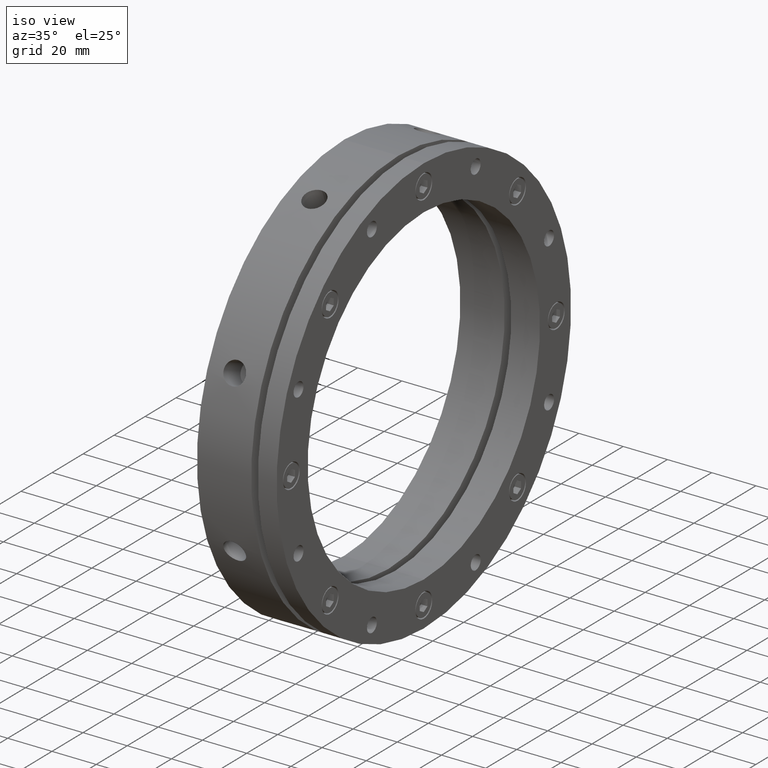
[diagram: clean part render]
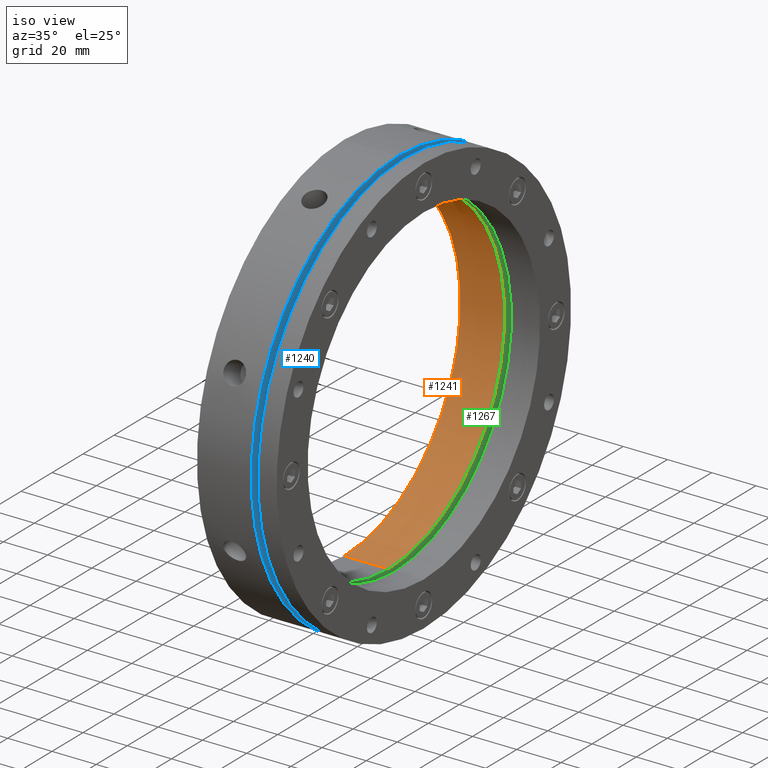
[diagram: same view with three faces highlighted in distinct colors, each labeled with its STEP entity id]
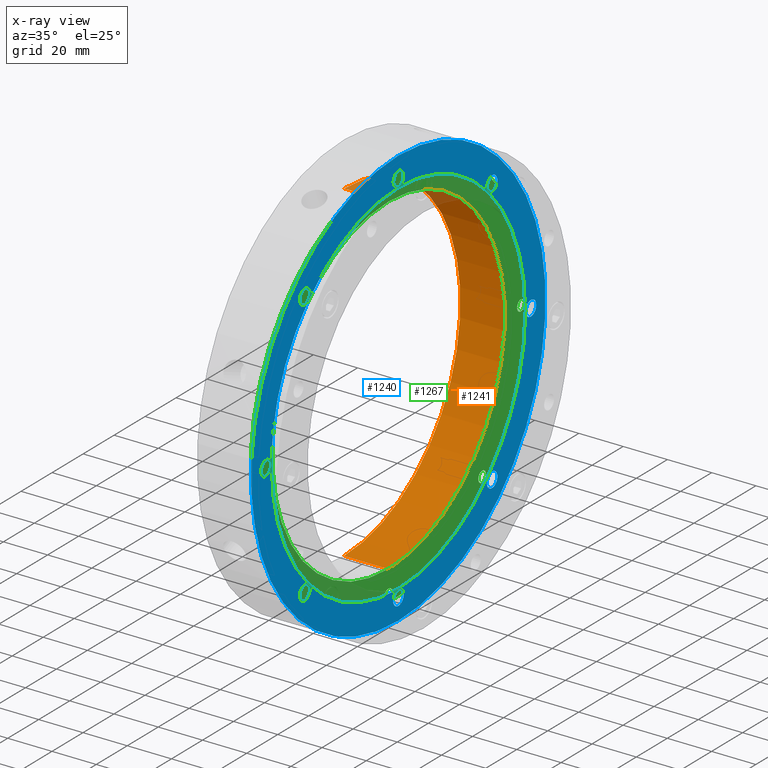
[diagram: x-ray of the same camera — body ghosted, the three highlighted faces saturated]
A machine part, iso view with three faces highlighted in distinct colors.
The next image is the same camera in x-ray (body ghosted, the three faces saturated) — at least one of them is partly hidden behind the body in this view.
Their STEP definitions:

[orange] entity #1241 — the highlighted cylindrical surface (partial cylindrical patch) has radius 75 mm, axis along (1, 0, 0).
#102 = FACE_OUTER_BOUND ( 'NONE', #1539, .T. ) ;
#108 = CYLINDRICAL_SURFACE ( 'NONE', #1805, 75.00000000000000000 ) ;
#1038 = DIRECTION ( 'NONE',  ( 1.000000000000000000, 0.0000000000000000000, 0.0000000000000000000 ) ) ;
#1039 = CARTESIAN_POINT ( 'NONE',  ( 17.99999999999997900, 0.0000000000000000000, -75.00000000000000000 ) ) ;
#1043 = DIRECTION ( 'NONE',  ( 1.000000000000000000, 0.0000000000000000000, 0.0000000000000000000 ) ) ;
#1045 = CARTESIAN_POINT ( 'NONE',  ( 17.99999999999997900, 9.184850993605148700E-015, 75.00000000000000000 ) ) ;
#1241 = ADVANCED_FACE ( 'NONE', ( #102 ), #108, .F. ) ;
#1539 = EDGE_LOOP ( 'NONE', ( #5470, #5469, #5468, #5476 ) ) ;
#1805 = AXIS2_PLACEMENT_3D ( 'NONE', #5789, #5788, #5784 ) ;
#2397 = CARTESIAN_POINT ( 'NONE',  ( 19.99999999999998200, 0.0000000000000000000, 0.0000000000000000000 ) ) ;
#2398 = DIRECTION ( 'NONE',  ( -1.000000000000000000, -0.0000000000000000000, -0.0000000000000000000 ) ) ;
#2399 = DIRECTION ( 'NONE',  ( 0.0000000000000000000, 0.0000000000000000000, -1.000000000000000000 ) ) ;
#2446 = CARTESIAN_POINT ( 'NONE',  ( -2.081668171172168500E-014, 9.184850993605148700E-015, 75.00000000000000000 ) ) ;
#2450 = CARTESIAN_POINT ( 'NONE',  ( 19.99999999999998200, 0.0000000000000000000, -75.00000000000000000 ) ) ;
#2453 = CARTESIAN_POINT ( 'NONE',  ( 19.99999999999998200, 9.184850993605148700E-015, 75.00000000000000000 ) ) ;
#2462 = CARTESIAN_POINT ( 'NONE',  ( -2.081668171172168500E-014, 0.0000000000000000000, -75.00000000000000000 ) ) ;
#2555 = CARTESIAN_POINT ( 'NONE',  ( -2.081668171172168500E-014, 0.0000000000000000000, 0.0000000000000000000 ) ) ;
#2556 = DIRECTION ( 'NONE',  ( 1.000000000000000000, 0.0000000000000000000, 0.0000000000000000000 ) ) ;
#2557 = DIRECTION ( 'NONE',  ( 0.0000000000000000000, 0.0000000000000000000, -1.000000000000000000 ) ) ;
#3841 = EDGE_CURVE ( 'NONE', #4181, #4169, #6027, .T. ) ;
#3843 = EDGE_CURVE ( 'NONE', #4165, #4172, #6024, .T. ) ;
#3963 = EDGE_CURVE ( 'NONE', #4172, #4169, #4552, .T. ) ;
#4165 = VERTEX_POINT ( 'NONE', #2446 ) ;
#4169 = VERTEX_POINT ( 'NONE', #2450 ) ;
#4172 = VERTEX_POINT ( 'NONE', #2453 ) ;
#4181 = VERTEX_POINT ( 'NONE', #2462 ) ;
#4552 = CIRCLE ( 'NONE', #5111, 75.00000000000000000 ) ;
#4586 = CIRCLE ( 'NONE', #5077, 75.00000000000000000 ) ;
#5077 = AXIS2_PLACEMENT_3D ( 'NONE', #2555, #2556, #2557 ) ;
#5111 = AXIS2_PLACEMENT_3D ( 'NONE', #2397, #2398, #2399 ) ;
#5179 = EDGE_CURVE ( 'NONE', #4181, #4165, #4586, .T. ) ;
#5468 = ORIENTED_EDGE ( 'NONE', *, *, #3841, .T. ) ;
#5469 = ORIENTED_EDGE ( 'NONE', *, *, #5179, .F. ) ;
#5470 = ORIENTED_EDGE ( 'NONE', *, *, #3843, .F. ) ;
#5476 = ORIENTED_EDGE ( 'NONE', *, *, #3963, .F. ) ;
#5784 = DIRECTION ( 'NONE',  ( 0.0000000000000000000, 0.0000000000000000000, -1.000000000000000000 ) ) ;
#5788 = DIRECTION ( 'NONE',  ( 1.000000000000000000, 0.0000000000000000000, 0.0000000000000000000 ) ) ;
#5789 = CARTESIAN_POINT ( 'NONE',  ( 17.99999999999997900, 0.0000000000000000000, 0.0000000000000000000 ) ) ;
#6020 = VECTOR ( 'NONE', #1043, 1000.000000000000000 ) ;
#6023 = VECTOR ( 'NONE', #1038, 1000.000000000000000 ) ;
#6024 = LINE ( 'NONE', #1045, #6020 ) ;
#6027 = LINE ( 'NONE', #1039, #6023 ) ;

[blue] entity #1240 — the highlighted planar face has unit normal (-1, 0, 0).
#9 = CIRCLE ( 'NONE', #5679, 82.00000000000001400 ) ;
#16 = CIRCLE ( 'NONE', #5683, 3.400000000000000400 ) ;
#28 = CIRCLE ( 'NONE', #5692, 3.400000000000000400 ) ;
#64 = FACE_BOUND ( 'NONE', #1438, .T. ) ;
#99 = FACE_BOUND ( 'NONE', #1528, .T. ) ;
#100 = FACE_BOUND ( 'NONE', #1540, .T. ) ;
#101 = FACE_BOUND ( 'NONE', #1500, .T. ) ;
#105 = FACE_OUTER_BOUND ( 'NONE', #1489, .T. ) ;
#120 = FACE_BOUND ( 'NONE', #1524, .T. ) ;
#121 = FACE_BOUND ( 'NONE', #1523, .T. ) ;
#122 = FACE_BOUND ( 'NONE', #1483, .T. ) ;
#151 = FACE_BOUND ( 'NONE', #1480, .T. ) ;
#159 = FACE_BOUND ( 'NONE', #1429, .T. ) ;
#451 = CARTESIAN_POINT ( 'NONE',  ( 24.49999999999997500, 85.50000000000000000, 3.399999999999991000 ) ) ;
#454 = CARTESIAN_POINT ( 'NONE',  ( 24.49999999999997500, 60.45762979144980400, -57.05762979144982700 ) ) ;
#455 = CARTESIAN_POINT ( 'NONE',  ( 24.49999999999997500, 60.45762979144980400, -63.85762979144982400 ) ) ;
#457 = CARTESIAN_POINT ( 'NONE',  ( 24.49999999999997500, 60.45762979144983300, 57.05762979144979100 ) ) ;
#458 = CARTESIAN_POINT ( 'NONE',  ( 24.49999999999997500, 60.45762979144983300, 63.85762979144979600 ) ) ;
#461 = CARTESIAN_POINT ( 'NONE',  ( 24.49999999999997500, -60.45762979144981100, 57.05762979144982000 ) ) ;
#466 = CARTESIAN_POINT ( 'NONE',  ( 24.49999999999997500, -60.45762979144981100, 63.85762979144982400 ) ) ;
#469 = CARTESIAN_POINT ( 'NONE',  ( 24.49999999999997500, 85.50000000000000000, -3.400000000000008300 ) ) ;
#472 = CARTESIAN_POINT ( 'NONE',  ( 24.49999999999997500, -85.50000000000000000, 3.399999999999999900 ) ) ;
#478 = CARTESIAN_POINT ( 'NONE',  ( 24.49999999999997500, -60.45762979144981800, -57.05762979144981300 ) ) ;
#481 = CARTESIAN_POINT ( 'NONE',  ( 24.49999999999997500, -85.50000000000000000, -3.399999999999999900 ) ) ;
#482 = CARTESIAN_POINT ( 'NONE',  ( 24.49999999999997500, 0.0000000000000000000, 82.10000000000000900 ) ) ;
#487 = CARTESIAN_POINT ( 'NONE',  ( 24.49999999999997500, 0.0000000000000000000, 82.00000000000001400 ) ) ;
#491 = CARTESIAN_POINT ( 'NONE',  ( 24.49999999999997500, -60.45762979144981800, -63.85762979144982400 ) ) ;
#498 = CARTESIAN_POINT ( 'NONE',  ( 24.49999999999997500, -8.465404088289900900E-015, -82.10000000000000900 ) ) ;
#499 = CARTESIAN_POINT ( 'NONE',  ( 24.49999999999997500, -8.881783999999999800E-015, -88.90000000000000600 ) ) ;
#506 = CARTESIAN_POINT ( 'NONE',  ( 24.49999999999997500, 4.163799117101000100E-016, 88.90000000000000600 ) ) ;
#514 = CARTESIAN_POINT ( 'NONE',  ( 24.49999999999997500, 1.004210375300829800E-014, -82.00000000000001400 ) ) ;
#874 = CARTESIAN_POINT ( 'NONE',  ( 24.49999999999997500, 85.50000000000000000, -8.881783999999999800E-015 ) ) ;
#875 = DIRECTION ( 'NONE',  ( 1.000000000000000000, 0.0000000000000000000, 0.0000000000000000000 ) ) ;
#876 = DIRECTION ( 'NONE',  ( 0.0000000000000000000, 0.0000000000000000000, -1.000000000000000000 ) ) ;
#884 = CARTESIAN_POINT ( 'NONE',  ( 24.49999999999997500, 60.45762979144980400, -60.45762979144982600 ) ) ;
#885 = DIRECTION ( 'NONE',  ( 1.000000000000000000, 0.0000000000000000000, 0.0000000000000000000 ) ) ;
#886 = DIRECTION ( 'NONE',  ( 0.0000000000000000000, 0.0000000000000000000, -1.000000000000000000 ) ) ;
#887 = CARTESIAN_POINT ( 'NONE',  ( 24.49999999999997500, 60.45762979144983300, 60.45762979144979000 ) ) ;
#888 = DIRECTION ( 'NONE',  ( 1.000000000000000000, 0.0000000000000000000, 0.0000000000000000000 ) ) ;
#889 = DIRECTION ( 'NONE',  ( 0.0000000000000000000, 0.0000000000000000000, -1.000000000000000000 ) ) ;
#908 = CARTESIAN_POINT ( 'NONE',  ( 24.49999999999997500, -8.881783999999999800E-015, -85.50000000000000000 ) ) ;
#909 = DIRECTION ( 'NONE',  ( 1.000000000000000000, 0.0000000000000000000, 0.0000000000000000000 ) ) ;
#910 = DIRECTION ( 'NONE',  ( 0.0000000000000000000, 0.0000000000000000000, -1.000000000000000000 ) ) ;
#1060 = CARTESIAN_POINT ( 'NONE',  ( 24.49999999999997500, -60.45762979144981800, -60.45762979144981100 ) ) ;
#1061 = DIRECTION ( 'NONE',  ( 1.000000000000000000, 0.0000000000000000000, 0.0000000000000000000 ) ) ;
#1062 = DIRECTION ( 'NONE',  ( 0.0000000000000000000, 0.0000000000000000000, -1.000000000000000000 ) ) ;
#1076 = CARTESIAN_POINT ( 'NONE',  ( 24.49999999999997500, -85.50000000000000000, 0.0000000000000000000 ) ) ;
#1077 = DIRECTION ( 'NONE',  ( 1.000000000000000000, 0.0000000000000000000, 0.0000000000000000000 ) ) ;
#1078 = DIRECTION ( 'NONE',  ( 0.0000000000000000000, 0.0000000000000000000, -1.000000000000000000 ) ) ;
#1086 = CARTESIAN_POINT ( 'NONE',  ( 24.49999999999997500, -60.45762979144981100, 60.45762979144981800 ) ) ;
#1087 = DIRECTION ( 'NONE',  ( 1.000000000000000000, 0.0000000000000000000, 0.0000000000000000000 ) ) ;
#1088 = DIRECTION ( 'NONE',  ( 0.0000000000000000000, 0.0000000000000000000, -1.000000000000000000 ) ) ;
#1101 = CARTESIAN_POINT ( 'NONE',  ( 24.49999999999997500, 0.0000000000000000000, 85.50000000000000000 ) ) ;
#1102 = DIRECTION ( 'NONE',  ( 1.000000000000000000, 0.0000000000000000000, 0.0000000000000000000 ) ) ;
#1103 = DIRECTION ( 'NONE',  ( 0.0000000000000000000, 0.0000000000000000000, -1.000000000000000000 ) ) ;
#1114 = CARTESIAN_POINT ( 'NONE',  ( 24.49999999999997500, 0.0000000000000000000, 0.0000000000000000000 ) ) ;
#1115 = DIRECTION ( 'NONE',  ( 1.000000000000000000, -0.0000000000000000000, -0.0000000000000000000 ) ) ;
#1116 = DIRECTION ( 'NONE',  ( 0.0000000000000000000, 0.0000000000000000000, 1.000000000000000000 ) ) ;
#1240 = ADVANCED_FACE ( 'NONE', ( #64, #159, #122, #151, #121, #120, #99, #100, #101, #105 ), #5783, .F. ) ;
#1384 = VERTEX_POINT ( 'NONE', #451 ) ;
#1387 = VERTEX_POINT ( 'NONE', #454 ) ;
#1388 = VERTEX_POINT ( 'NONE', #455 ) ;
#1392 = VERTEX_POINT ( 'NONE', #457 ) ;
#1394 = VERTEX_POINT ( 'NONE', #458 ) ;
#1398 = VERTEX_POINT ( 'NONE', #461 ) ;
#1405 = VERTEX_POINT ( 'NONE', #466 ) ;
#1411 = VERTEX_POINT ( 'NONE', #469 ) ;
#1416 = VERTEX_POINT ( 'NONE', #472 ) ;
#1424 = VERTEX_POINT ( 'NONE', #478 ) ;
#1427 = VERTEX_POINT ( 'NONE', #481 ) ;
#1428 = VERTEX_POINT ( 'NONE', #482 ) ;
#1429 = EDGE_LOOP ( 'NONE', ( #5462, #5461 ) ) ;
#1437 = VERTEX_POINT ( 'NONE', #487 ) ;
#1438 = EDGE_LOOP ( 'NONE', ( #5464, #5463 ) ) ;
#1443 = VERTEX_POINT ( 'NONE', #491 ) ;
#1452 = VERTEX_POINT ( 'NONE', #498 ) ;
#1453 = VERTEX_POINT ( 'NONE', #499 ) ;
#1468 = VERTEX_POINT ( 'NONE', #506 ) ;
#1480 = EDGE_LOOP ( 'NONE', ( #5458, #5455 ) ) ;
#1481 = VERTEX_POINT ( 'NONE', #514 ) ;
#1483 = EDGE_LOOP ( 'NONE', ( #5460, #5459 ) ) ;
#1489 = EDGE_LOOP ( 'NONE', ( #5452, #5451 ) ) ;
#1500 = EDGE_LOOP ( 'NONE', ( #5454, #5453 ) ) ;
#1523 = EDGE_LOOP ( 'NONE', ( #5456, #5505 ) ) ;
#1524 = EDGE_LOOP ( 'NONE', ( #5504, #5507 ) ) ;
#1528 = EDGE_LOOP ( 'NONE', ( #5503, #5506 ) ) ;
#1540 = EDGE_LOOP ( 'NONE', ( #5500, #5457 ) ) ;
#1734 = AXIS2_PLACEMENT_3D ( 'NONE', #874, #875, #876 ) ;
#1736 = AXIS2_PLACEMENT_3D ( 'NONE', #884, #885, #886 ) ;
#1740 = AXIS2_PLACEMENT_3D ( 'NONE', #887, #888, #889 ) ;
#1744 = AXIS2_PLACEMENT_3D ( 'NONE', #908, #909, #910 ) ;
#1807 = AXIS2_PLACEMENT_3D ( 'NONE', #5785, #5781, #5787 ) ;
#2424 = CARTESIAN_POINT ( 'NONE',  ( 24.49999999999997500, 60.45762979144983300, 60.45762979144979000 ) ) ;
#2425 = DIRECTION ( 'NONE',  ( 1.000000000000000000, 0.0000000000000000000, 0.0000000000000000000 ) ) ;
#2426 = DIRECTION ( 'NONE',  ( 0.0000000000000000000, 0.0000000000000000000, -1.000000000000000000 ) ) ;
#2428 = CARTESIAN_POINT ( 'NONE',  ( 24.49999999999997500, 85.50000000000000000, -8.881783999999999800E-015 ) ) ;
#2429 = DIRECTION ( 'NONE',  ( 1.000000000000000000, 0.0000000000000000000, 0.0000000000000000000 ) ) ;
#2430 = DIRECTION ( 'NONE',  ( 0.0000000000000000000, 0.0000000000000000000, -1.000000000000000000 ) ) ;
#2433 = CARTESIAN_POINT ( 'NONE',  ( 24.49999999999997500, 60.45762979144980400, -60.45762979144982600 ) ) ;
#2434 = DIRECTION ( 'NONE',  ( 1.000000000000000000, 0.0000000000000000000, 0.0000000000000000000 ) ) ;
#2435 = DIRECTION ( 'NONE',  ( 0.0000000000000000000, 0.0000000000000000000, -1.000000000000000000 ) ) ;
#2438 = CARTESIAN_POINT ( 'NONE',  ( 24.49999999999997500, -8.881783999999999800E-015, -85.50000000000000000 ) ) ;
#2439 = DIRECTION ( 'NONE',  ( 1.000000000000000000, 0.0000000000000000000, 0.0000000000000000000 ) ) ;
#2440 = DIRECTION ( 'NONE',  ( 0.0000000000000000000, 0.0000000000000000000, -1.000000000000000000 ) ) ;
#2472 = CARTESIAN_POINT ( 'NONE',  ( 24.49999999999997500, 1.163414459189985600E-014, 95.00000000000000000 ) ) ;
#2486 = CARTESIAN_POINT ( 'NONE',  ( 24.49999999999997500, 0.0000000000000000000, -95.00000000000000000 ) ) ;
#2490 = CARTESIAN_POINT ( 'NONE',  ( 24.49999999999997500, -60.45762979144981800, -60.45762979144981100 ) ) ;
#2491 = DIRECTION ( 'NONE',  ( 1.000000000000000000, 0.0000000000000000000, 0.0000000000000000000 ) ) ;
#2492 = DIRECTION ( 'NONE',  ( 0.0000000000000000000, 0.0000000000000000000, -1.000000000000000000 ) ) ;
#2493 = CARTESIAN_POINT ( 'NONE',  ( 24.49999999999997500, -85.50000000000000000, 0.0000000000000000000 ) ) ;
#2494 = DIRECTION ( 'NONE',  ( 1.000000000000000000, 0.0000000000000000000, 0.0000000000000000000 ) ) ;
#2495 = DIRECTION ( 'NONE',  ( 0.0000000000000000000, 0.0000000000000000000, -1.000000000000000000 ) ) ;
#2496 = CARTESIAN_POINT ( 'NONE',  ( 24.49999999999997500, -60.45762979144981100, 60.45762979144981800 ) ) ;
#2497 = DIRECTION ( 'NONE',  ( 1.000000000000000000, 0.0000000000000000000, 0.0000000000000000000 ) ) ;
#2498 = DIRECTION ( 'NONE',  ( 0.0000000000000000000, 0.0000000000000000000, -1.000000000000000000 ) ) ;
#2499 = CARTESIAN_POINT ( 'NONE',  ( 24.49999999999997500, 0.0000000000000000000, 85.50000000000000000 ) ) ;
#2500 = DIRECTION ( 'NONE',  ( 1.000000000000000000, 0.0000000000000000000, 0.0000000000000000000 ) ) ;
#2501 = DIRECTION ( 'NONE',  ( 0.0000000000000000000, 0.0000000000000000000, -1.000000000000000000 ) ) ;
#2502 = CARTESIAN_POINT ( 'NONE',  ( 24.49999999999997500, 0.0000000000000000000, 0.0000000000000000000 ) ) ;
#2503 = DIRECTION ( 'NONE',  ( 1.000000000000000000, -0.0000000000000000000, -0.0000000000000000000 ) ) ;
#2504 = DIRECTION ( 'NONE',  ( 0.0000000000000000000, 0.0000000000000000000, 1.000000000000000000 ) ) ;
#2560 = CARTESIAN_POINT ( 'NONE',  ( 24.49999999999997500, 0.0000000000000000000, 0.0000000000000000000 ) ) ;
#2561 = DIRECTION ( 'NONE',  ( -1.000000000000000000, -0.0000000000000000000, -0.0000000000000000000 ) ) ;
#2562 = DIRECTION ( 'NONE',  ( 0.0000000000000000000, 0.0000000000000000000, -1.000000000000000000 ) ) ;
#2876 = CARTESIAN_POINT ( 'NONE',  ( 24.49999999999997500, 0.0000000000000000000, 0.0000000000000000000 ) ) ;
#2877 = DIRECTION ( 'NONE',  ( -1.000000000000000000, -0.0000000000000000000, -0.0000000000000000000 ) ) ;
#2878 = DIRECTION ( 'NONE',  ( 0.0000000000000000000, 0.0000000000000000000, -1.000000000000000000 ) ) ;
#3502 = EDGE_CURVE ( 'NONE', #1384, #1411, #4125, .T. ) ;
#3506 = EDGE_CURVE ( 'NONE', #1387, #1388, #4119, .T. ) ;
#3507 = EDGE_CURVE ( 'NONE', #1394, #1392, #4118, .T. ) ;
#3517 = EDGE_CURVE ( 'NONE', #1452, #1453, #4102, .T. ) ;
#3848 = EDGE_CURVE ( 'NONE', #1424, #1443, #6016, .T. ) ;
#3854 = EDGE_CURVE ( 'NONE', #1416, #1427, #6008, .T. ) ;
#3858 = EDGE_CURVE ( 'NONE', #1405, #1398, #28, .T. ) ;
#3864 = EDGE_CURVE ( 'NONE', #1468, #1428, #16, .T. ) ;
#3870 = EDGE_CURVE ( 'NONE', #1481, #1437, #9, .T. ) ;
#3972 = EDGE_CURVE ( 'NONE', #1392, #1394, #4561, .T. ) ;
#3973 = EDGE_CURVE ( 'NONE', #1411, #1384, #4562, .T. ) ;
#3974 = EDGE_CURVE ( 'NONE', #1388, #1387, #4563, .T. ) ;
#3975 = EDGE_CURVE ( 'NONE', #1453, #1452, #4564, .T. ) ;
#4102 = CIRCLE ( 'NONE', #1744, 3.400000000000000400 ) ;
#4118 = CIRCLE ( 'NONE', #1740, 3.400000000000000400 ) ;
#4119 = CIRCLE ( 'NONE', #1736, 3.399999999999993200 ) ;
#4125 = CIRCLE ( 'NONE', #1734, 3.399999999999999900 ) ;
#4191 = VERTEX_POINT ( 'NONE', #2472 ) ;
#4205 = VERTEX_POINT ( 'NONE', #2486 ) ;
#4486 = CIRCLE ( 'NONE', #5096, 3.400000000000000400 ) ;
#4561 = CIRCLE ( 'NONE', #5102, 3.400000000000000400 ) ;
#4562 = CIRCLE ( 'NONE', #5101, 3.399999999999999900 ) ;
#4563 = CIRCLE ( 'NONE', #5100, 3.399999999999993200 ) ;
#4564 = CIRCLE ( 'NONE', #5099, 3.400000000000000400 ) ;
#4567 = CIRCLE ( 'NONE', #5098, 3.400000000000007000 ) ;
#4568 = CIRCLE ( 'NONE', #5097, 3.399999999999999900 ) ;
#4572 = CIRCLE ( 'NONE', #5094, 82.00000000000001400 ) ;
#4573 = CIRCLE ( 'NONE', #5095, 3.400000000000000400 ) ;
#4587 = CIRCLE ( 'NONE', #5076, 95.00000000000000000 ) ;
#4649 = CIRCLE ( 'NONE', #5064, 95.00000000000000000 ) ;
#5064 = AXIS2_PLACEMENT_3D ( 'NONE', #2876, #2877, #2878 ) ;
#5076 = AXIS2_PLACEMENT_3D ( 'NONE', #2560, #2561, #2562 ) ;
#5094 = AXIS2_PLACEMENT_3D ( 'NONE', #2502, #2503, #2504 ) ;
#5095 = AXIS2_PLACEMENT_3D ( 'NONE', #2499, #2500, #2501 ) ;
#5096 = AXIS2_PLACEMENT_3D ( 'NONE', #2496, #2497, #2498 ) ;
#5097 = AXIS2_PLACEMENT_3D ( 'NONE', #2493, #2494, #2495 ) ;
#5098 = AXIS2_PLACEMENT_3D ( 'NONE', #2490, #2491, #2492 ) ;
#5099 = AXIS2_PLACEMENT_3D ( 'NONE', #2438, #2439, #2440 ) ;
#5100 = AXIS2_PLACEMENT_3D ( 'NONE', #2433, #2434, #2435 ) ;
#5101 = AXIS2_PLACEMENT_3D ( 'NONE', #2428, #2429, #2430 ) ;
#5102 = AXIS2_PLACEMENT_3D ( 'NONE', #2424, #2425, #2426 ) ;
#5158 = EDGE_CURVE ( 'NONE', #1443, #1424, #4567, .T. ) ;
#5159 = EDGE_CURVE ( 'NONE', #1427, #1416, #4568, .T. ) ;
#5160 = EDGE_CURVE ( 'NONE', #1398, #1405, #4486, .T. ) ;
#5161 = EDGE_CURVE ( 'NONE', #1428, #1468, #4573, .T. ) ;
#5162 = EDGE_CURVE ( 'NONE', #1437, #1481, #4572, .T. ) ;
#5180 = EDGE_CURVE ( 'NONE', #4205, #4191, #4587, .T. ) ;
#5224 = EDGE_CURVE ( 'NONE', #4191, #4205, #4649, .T. ) ;
#5451 = ORIENTED_EDGE ( 'NONE', *, *, #5224, .F. ) ;
#5452 = ORIENTED_EDGE ( 'NONE', *, *, #5180, .F. ) ;
#5453 = ORIENTED_EDGE ( 'NONE', *, *, #3507, .F. ) ;
#5454 = ORIENTED_EDGE ( 'NONE', *, *, #3972, .F. ) ;
#5455 = ORIENTED_EDGE ( 'NONE', *, *, #3854, .F. ) ;
#5456 = ORIENTED_EDGE ( 'NONE', *, *, #5158, .F. ) ;
#5457 = ORIENTED_EDGE ( 'NONE', *, *, #3502, .F. ) ;
#5458 = ORIENTED_EDGE ( 'NONE', *, *, #5159, .F. ) ;
#5459 = ORIENTED_EDGE ( 'NONE', *, *, #3858, .F. ) ;
#5460 = ORIENTED_EDGE ( 'NONE', *, *, #5160, .F. ) ;
#5461 = ORIENTED_EDGE ( 'NONE', *, *, #3864, .F. ) ;
#5462 = ORIENTED_EDGE ( 'NONE', *, *, #5161, .F. ) ;
#5463 = ORIENTED_EDGE ( 'NONE', *, *, #3870, .F. ) ;
#5464 = ORIENTED_EDGE ( 'NONE', *, *, #5162, .F. ) ;
#5500 = ORIENTED_EDGE ( 'NONE', *, *, #3973, .F. ) ;
#5503 = ORIENTED_EDGE ( 'NONE', *, *, #3974, .F. ) ;
#5504 = ORIENTED_EDGE ( 'NONE', *, *, #3975, .F. ) ;
#5505 = ORIENTED_EDGE ( 'NONE', *, *, #3848, .F. ) ;
#5506 = ORIENTED_EDGE ( 'NONE', *, *, #3506, .F. ) ;
#5507 = ORIENTED_EDGE ( 'NONE', *, *, #3517, .F. ) ;
#5679 = AXIS2_PLACEMENT_3D ( 'NONE', #1114, #1115, #1116 ) ;
#5683 = AXIS2_PLACEMENT_3D ( 'NONE', #1101, #1102, #1103 ) ;
#5688 = AXIS2_PLACEMENT_3D ( 'NONE', #1076, #1077, #1078 ) ;
#5691 = AXIS2_PLACEMENT_3D ( 'NONE', #1060, #1061, #1062 ) ;
#5692 = AXIS2_PLACEMENT_3D ( 'NONE', #1086, #1087, #1088 ) ;
#5781 = DIRECTION ( 'NONE',  ( -1.000000000000000000, 0.0000000000000000000, 0.0000000000000000000 ) ) ;
#5783 = PLANE ( 'NONE',  #1807 ) ;
#5785 = CARTESIAN_POINT ( 'NONE',  ( 24.49999999999997500, 88.50000000000001400, 0.0000000000000000000 ) ) ;
#5787 = DIRECTION ( 'NONE',  ( 0.0000000000000000000, 0.0000000000000000000, 1.000000000000000000 ) ) ;
#6008 = CIRCLE ( 'NONE', #5688, 3.399999999999999900 ) ;
#6016 = CIRCLE ( 'NONE', #5691, 3.400000000000007000 ) ;

[green] entity #1267 — the highlighted planar face has unit normal (-1, 0, 0).
#44 = FACE_OUTER_BOUND ( 'NONE', #1420, .T. ) ;
#45 = FACE_BOUND ( 'NONE', #1415, .T. ) ;
#46 = FACE_BOUND ( 'NONE', #1414, .T. ) ;
#47 = FACE_BOUND ( 'NONE', #1409, .T. ) ;
#48 = FACE_BOUND ( 'NONE', #1396, .T. ) ;
#49 = FACE_BOUND ( 'NONE', #1402, .T. ) ;
#52 = FACE_BOUND ( 'NONE', #1410, .T. ) ;
#60 = FACE_BOUND ( 'NONE', #3770, .T. ) ;
#61 = FACE_BOUND ( 'NONE', #1407, .T. ) ;
#69 = FACE_BOUND ( 'NONE', #1403, .T. ) ;
#445 = CARTESIAN_POINT ( 'NONE',  ( 19.99999999999998200, 60.45762979144983300, 62.91612979144979800 ) ) ;
#452 = CARTESIAN_POINT ( 'NONE',  ( 19.99999999999996400, 0.0000000000000000000, 89.00000000000000000 ) ) ;
#501 = CARTESIAN_POINT ( 'NONE',  ( 19.99999999999996400, 1.089935651241144200E-014, -89.00000000000000000 ) ) ;
#502 = CARTESIAN_POINT ( 'NONE',  ( 19.99999999999998200, -60.45762979144981800, -57.99912979144981100 ) ) ;
#508 = CARTESIAN_POINT ( 'NONE',  ( 19.99999999999998200, -8.580704584429623500E-015, -87.95850000000001500 ) ) ;
#510 = CARTESIAN_POINT ( 'NONE',  ( 19.99999999999998200, -8.881783999999999800E-015, -83.04149999999999900 ) ) ;
#521 = CARTESIAN_POINT ( 'NONE',  ( 19.99999999999998200, 60.45762979144980400, -62.91612979144982600 ) ) ;
#525 = CARTESIAN_POINT ( 'NONE',  ( 19.99999999999998200, 60.45762979144983300, 57.99912979144978900 ) ) ;
#526 = CARTESIAN_POINT ( 'NONE',  ( 19.99999999999998200, 85.50000000000000000, 2.458499999999991000 ) ) ;
#531 = CARTESIAN_POINT ( 'NONE',  ( 19.99999999999998200, 60.45762979144980400, -57.99912979144982500 ) ) ;
#606 = CARTESIAN_POINT ( 'NONE',  ( 19.99999999999998200, 85.50000000000000000, -2.458500000000008300 ) ) ;
#663 = CARTESIAN_POINT ( 'NONE',  ( 19.99999999999998200, -60.45762979144981800, -60.45762979144981100 ) ) ;
#664 = DIRECTION ( 'NONE',  ( -1.000000000000000000, 0.0000000000000000000, 0.0000000000000000000 ) ) ;
#665 = DIRECTION ( 'NONE',  ( 0.0000000000000000000, 0.0000000000000000000, 1.000000000000000000 ) ) ;
#687 = CARTESIAN_POINT ( 'NONE',  ( 19.99999999999998200, -8.881783999999999800E-015, -85.50000000000000000 ) ) ;
#688 = DIRECTION ( 'NONE',  ( -1.000000000000000000, 0.0000000000000000000, 0.0000000000000000000 ) ) ;
#689 = DIRECTION ( 'NONE',  ( 0.0000000000000000000, 0.0000000000000000000, 1.000000000000000000 ) ) ;
#785 = CARTESIAN_POINT ( 'NONE',  ( 19.99999999999998200, 60.45762979144983300, 60.45762979144979000 ) ) ;
#786 = DIRECTION ( 'NONE',  ( -1.000000000000000000, 0.0000000000000000000, 0.0000000000000000000 ) ) ;
#787 = DIRECTION ( 'NONE',  ( 0.0000000000000000000, 0.0000000000000000000, 1.000000000000000000 ) ) ;
#835 = CARTESIAN_POINT ( 'NONE',  ( 19.99999999999998200, -60.45762979144981100, 60.45762979144981800 ) ) ;
#836 = DIRECTION ( 'NONE',  ( -1.000000000000000000, 0.0000000000000000000, 0.0000000000000000000 ) ) ;
#837 = DIRECTION ( 'NONE',  ( 0.0000000000000000000, 0.0000000000000000000, 1.000000000000000000 ) ) ;
#854 = CARTESIAN_POINT ( 'NONE',  ( 19.99999999999996400, 0.0000000000000000000, 0.0000000000000000000 ) ) ;
#855 = DIRECTION ( 'NONE',  ( -1.000000000000000000, 0.0000000000000000000, 0.0000000000000000000 ) ) ;
#856 = DIRECTION ( 'NONE',  ( 0.0000000000000000000, 0.0000000000000000000, 1.000000000000000000 ) ) ;
#858 = CARTESIAN_POINT ( 'NONE',  ( 19.99999999999998200, 60.45762979144980400, -60.45762979144982600 ) ) ;
#859 = DIRECTION ( 'NONE',  ( -1.000000000000000000, 0.0000000000000000000, 0.0000000000000000000 ) ) ;
#860 = DIRECTION ( 'NONE',  ( 0.0000000000000000000, 0.0000000000000000000, 1.000000000000000000 ) ) ;
#903 = CARTESIAN_POINT ( 'NONE',  ( 19.99999999999998200, 85.50000000000000000, -8.881783999999999800E-015 ) ) ;
#904 = DIRECTION ( 'NONE',  ( -1.000000000000000000, 0.0000000000000000000, 0.0000000000000000000 ) ) ;
#905 = DIRECTION ( 'NONE',  ( 0.0000000000000000000, 0.0000000000000000000, 1.000000000000000000 ) ) ;
#1040 = CARTESIAN_POINT ( 'NONE',  ( 19.99999999999998200, 0.0000000000000000000, 85.50000000000000000 ) ) ;
#1041 = DIRECTION ( 'NONE',  ( -1.000000000000000000, 0.0000000000000000000, 0.0000000000000000000 ) ) ;
#1042 = DIRECTION ( 'NONE',  ( 0.0000000000000000000, 0.0000000000000000000, 1.000000000000000000 ) ) ;
#1046 = CARTESIAN_POINT ( 'NONE',  ( 19.99999999999998200, 0.0000000000000000000, 0.0000000000000000000 ) ) ;
#1047 = DIRECTION ( 'NONE',  ( -1.000000000000000000, -0.0000000000000000000, -0.0000000000000000000 ) ) ;
#1048 = DIRECTION ( 'NONE',  ( 0.0000000000000000000, 0.0000000000000000000, -1.000000000000000000 ) ) ;
#1056 = CARTESIAN_POINT ( 'NONE',  ( 19.99999999999998200, -85.50000000000000000, 0.0000000000000000000 ) ) ;
#1057 = DIRECTION ( 'NONE',  ( -1.000000000000000000, 0.0000000000000000000, 0.0000000000000000000 ) ) ;
#1058 = DIRECTION ( 'NONE',  ( 0.0000000000000000000, 0.0000000000000000000, 1.000000000000000000 ) ) ;
#1267 = ADVANCED_FACE ( 'NONE', ( #61, #49, #60, #69, #52, #48, #47, #46, #45, #44 ), #5865, .F. ) ;
#1385 = VERTEX_POINT ( 'NONE', #452 ) ;
#1391 = VERTEX_POINT ( 'NONE', #445 ) ;
#1396 = EDGE_LOOP ( 'NONE', ( #4256, #4255 ) ) ;
#1402 = EDGE_LOOP ( 'NONE', ( #4264, #4263 ) ) ;
#1403 = EDGE_LOOP ( 'NONE', ( #4260, #4259 ) ) ;
#1407 = EDGE_LOOP ( 'NONE', ( #4266, #4265 ) ) ;
#1409 = EDGE_LOOP ( 'NONE', ( #4254, #4253 ) ) ;
#1410 = EDGE_LOOP ( 'NONE', ( #4258, #4257 ) ) ;
#1414 = EDGE_LOOP ( 'NONE', ( #4252, #4251 ) ) ;
#1415 = EDGE_LOOP ( 'NONE', ( #4250, #4249 ) ) ;
#1420 = EDGE_LOOP ( 'NONE', ( #4248, #4247 ) ) ;
#1461 = VERTEX_POINT ( 'NONE', #501 ) ;
#1463 = VERTEX_POINT ( 'NONE', #502 ) ;
#1470 = VERTEX_POINT ( 'NONE', #508 ) ;
#1472 = VERTEX_POINT ( 'NONE', #510 ) ;
#1505 = VERTEX_POINT ( 'NONE', #521 ) ;
#1514 = VERTEX_POINT ( 'NONE', #525 ) ;
#1515 = VERTEX_POINT ( 'NONE', #526 ) ;
#1535 = VERTEX_POINT ( 'NONE', #531 ) ;
#1615 = VERTEX_POINT ( 'NONE', #606 ) ;
#1678 = CIRCLE ( 'NONE', #1768, 2.458500000000002600 ) ;
#1689 = CIRCLE ( 'NONE', #1779, 2.458500000000002600 ) ;
#1728 = AXIS2_PLACEMENT_3D ( 'NONE', #854, #855, #856 ) ;
#1730 = AXIS2_PLACEMENT_3D ( 'NONE', #785, #786, #787 ) ;
#1733 = AXIS2_PLACEMENT_3D ( 'NONE', #858, #859, #860 ) ;
#1739 = AXIS2_PLACEMENT_3D ( 'NONE', #903, #904, #905 ) ;
#1767 = AXIS2_PLACEMENT_3D ( 'NONE', #835, #836, #837 ) ;
#1768 = AXIS2_PLACEMENT_3D ( 'NONE', #687, #688, #689 ) ;
#1779 = AXIS2_PLACEMENT_3D ( 'NONE', #663, #664, #665 ) ;
#1839 = EDGE_CURVE ( 'NONE', #4156, #1463, #1689, .T. ) ;
#1848 = EDGE_CURVE ( 'NONE', #1470, #1472, #1678, .T. ) ;
#2367 = CARTESIAN_POINT ( 'NONE',  ( 19.99999999999996400, 0.0000000000000000000, 0.0000000000000000000 ) ) ;
#2368 = DIRECTION ( 'NONE',  ( -1.000000000000000000, 0.0000000000000000000, 0.0000000000000000000 ) ) ;
#2369 = DIRECTION ( 'NONE',  ( 0.0000000000000000000, 0.0000000000000000000, 1.000000000000000000 ) ) ;
#2397 = CARTESIAN_POINT ( 'NONE',  ( 19.99999999999998200, 0.0000000000000000000, 0.0000000000000000000 ) ) ;
#2398 = DIRECTION ( 'NONE',  ( -1.000000000000000000, -0.0000000000000000000, -0.0000000000000000000 ) ) ;
#2399 = DIRECTION ( 'NONE',  ( 0.0000000000000000000, 0.0000000000000000000, -1.000000000000000000 ) ) ;
#2400 = CARTESIAN_POINT ( 'NONE',  ( 19.99999999999998200, 0.0000000000000000000, 85.50000000000000000 ) ) ;
#2401 = DIRECTION ( 'NONE',  ( -1.000000000000000000, 0.0000000000000000000, 0.0000000000000000000 ) ) ;
#2402 = DIRECTION ( 'NONE',  ( 0.0000000000000000000, 0.0000000000000000000, 1.000000000000000000 ) ) ;
#2403 = CARTESIAN_POINT ( 'NONE',  ( 19.99999999999998200, -60.45762979144981100, 60.45762979144981800 ) ) ;
#2404 = DIRECTION ( 'NONE',  ( -1.000000000000000000, 0.0000000000000000000, 0.0000000000000000000 ) ) ;
#2405 = DIRECTION ( 'NONE',  ( 0.0000000000000000000, 0.0000000000000000000, 1.000000000000000000 ) ) ;
#2406 = CARTESIAN_POINT ( 'NONE',  ( 19.99999999999998200, -85.50000000000000000, 0.0000000000000000000 ) ) ;
#2407 = DIRECTION ( 'NONE',  ( -1.000000000000000000, 0.0000000000000000000, 0.0000000000000000000 ) ) ;
#2408 = DIRECTION ( 'NONE',  ( 0.0000000000000000000, 0.0000000000000000000, 1.000000000000000000 ) ) ;
#2409 = CARTESIAN_POINT ( 'NONE',  ( 19.99999999999998200, -60.45762979144981800, -60.45762979144981100 ) ) ;
#2410 = DIRECTION ( 'NONE',  ( -1.000000000000000000, 0.0000000000000000000, 0.0000000000000000000 ) ) ;
#2411 = DIRECTION ( 'NONE',  ( 0.0000000000000000000, 0.0000000000000000000, 1.000000000000000000 ) ) ;
#2412 = CARTESIAN_POINT ( 'NONE',  ( 19.99999999999998200, -8.881783999999999800E-015, -85.50000000000000000 ) ) ;
#2413 = DIRECTION ( 'NONE',  ( -1.000000000000000000, 0.0000000000000000000, 0.0000000000000000000 ) ) ;
#2414 = DIRECTION ( 'NONE',  ( 0.0000000000000000000, 0.0000000000000000000, 1.000000000000000000 ) ) ;
#2415 = CARTESIAN_POINT ( 'NONE',  ( 19.99999999999998200, 60.45762979144980400, -60.45762979144982600 ) ) ;
#2416 = DIRECTION ( 'NONE',  ( -1.000000000000000000, 0.0000000000000000000, 0.0000000000000000000 ) ) ;
#2417 = DIRECTION ( 'NONE',  ( 0.0000000000000000000, 0.0000000000000000000, 1.000000000000000000 ) ) ;
#2418 = CARTESIAN_POINT ( 'NONE',  ( 19.99999999999998200, 85.50000000000000000, -8.881783999999999800E-015 ) ) ;
#2419 = DIRECTION ( 'NONE',  ( -1.000000000000000000, 0.0000000000000000000, 0.0000000000000000000 ) ) ;
#2420 = DIRECTION ( 'NONE',  ( 0.0000000000000000000, 0.0000000000000000000, 1.000000000000000000 ) ) ;
#2421 = CARTESIAN_POINT ( 'NONE',  ( 19.99999999999998200, 60.45762979144983300, 60.45762979144979000 ) ) ;
#2422 = DIRECTION ( 'NONE',  ( -1.000000000000000000, 0.0000000000000000000, 0.0000000000000000000 ) ) ;
#2423 = DIRECTION ( 'NONE',  ( 0.0000000000000000000, 0.0000000000000000000, 1.000000000000000000 ) ) ;
#2431 = CARTESIAN_POINT ( 'NONE',  ( 19.99999999999998200, -85.50000000000000000, -2.458499999999999900 ) ) ;
#2436 = CARTESIAN_POINT ( 'NONE',  ( 19.99999999999998200, -60.45762979144981800, -62.91612979144981200 ) ) ;
#2441 = CARTESIAN_POINT ( 'NONE',  ( 19.99999999999998200, -85.50000000000000000, 2.458499999999999900 ) ) ;
#2443 = CARTESIAN_POINT ( 'NONE',  ( 19.99999999999998200, -60.45762979144981100, 62.91612979144982600 ) ) ;
#2445 = CARTESIAN_POINT ( 'NONE',  ( 19.99999999999998200, -60.45762979144981100, 57.99912979144981800 ) ) ;
#2450 = CARTESIAN_POINT ( 'NONE',  ( 19.99999999999998200, 0.0000000000000000000, -75.00000000000000000 ) ) ;
#2452 = CARTESIAN_POINT ( 'NONE',  ( 19.99999999999998200, 3.010794155703764200E-016, 83.04149999999999900 ) ) ;
#2453 = CARTESIAN_POINT ( 'NONE',  ( 19.99999999999998200, 9.184850993605148700E-015, 75.00000000000000000 ) ) ;
#2460 = CARTESIAN_POINT ( 'NONE',  ( 19.99999999999998200, 0.0000000000000000000, 87.95850000000001500 ) ) ;
#3466 = EDGE_CURVE ( 'NONE', #1514, #1391, #5604, .T. ) ;
#3485 = EDGE_CURVE ( 'NONE', #4164, #4161, #4149, .T. ) ;
#3494 = EDGE_CURVE ( 'NONE', #1461, #1385, #4136, .T. ) ;
#3495 = EDGE_CURVE ( 'NONE', #1505, #1535, #4135, .T. ) ;
#3513 = EDGE_CURVE ( 'NONE', #1615, #1515, #4109, .T. ) ;
#3770 = EDGE_LOOP ( 'NONE', ( #4262, #4261 ) ) ;
#3827 = AXIS2_PLACEMENT_3D ( 'NONE', #5867, #5863, #5869 ) ;
#3840 = EDGE_CURVE ( 'NONE', #4171, #4179, #6028, .T. ) ;
#3842 = EDGE_CURVE ( 'NONE', #4169, #4172, #6025, .T. ) ;
#3847 = EDGE_CURVE ( 'NONE', #4160, #4157, #6017, .T. ) ;
#3953 = EDGE_CURVE ( 'NONE', #1385, #1461, #4542, .T. ) ;
#3963 = EDGE_CURVE ( 'NONE', #4172, #4169, #4552, .T. ) ;
#3964 = EDGE_CURVE ( 'NONE', #4179, #4171, #4553, .T. ) ;
#3965 = EDGE_CURVE ( 'NONE', #4161, #4164, #4554, .T. ) ;
#3966 = EDGE_CURVE ( 'NONE', #4157, #4160, #4555, .T. ) ;
#3967 = EDGE_CURVE ( 'NONE', #1463, #4156, #4556, .T. ) ;
#3968 = EDGE_CURVE ( 'NONE', #1472, #1470, #4557, .T. ) ;
#3969 = EDGE_CURVE ( 'NONE', #1535, #1505, #4558, .T. ) ;
#3970 = EDGE_CURVE ( 'NONE', #1515, #1615, #4559, .T. ) ;
#3971 = EDGE_CURVE ( 'NONE', #1391, #1514, #4560, .T. ) ;
#4109 = CIRCLE ( 'NONE', #1739, 2.458499999999999900 ) ;
#4135 = CIRCLE ( 'NONE', #1733, 2.458500000000002600 ) ;
#4136 = CIRCLE ( 'NONE', #1728, 89.00000000000000000 ) ;
#4149 = CIRCLE ( 'NONE', #1767, 2.458500000000002600 ) ;
#4156 = VERTEX_POINT ( 'NONE', #2436 ) ;
#4157 = VERTEX_POINT ( 'NONE', #2441 ) ;
#4160 = VERTEX_POINT ( 'NONE', #2431 ) ;
#4161 = VERTEX_POINT ( 'NONE', #2443 ) ;
#4164 = VERTEX_POINT ( 'NONE', #2445 ) ;
#4169 = VERTEX_POINT ( 'NONE', #2450 ) ;
#4171 = VERTEX_POINT ( 'NONE', #2452 ) ;
#4172 = VERTEX_POINT ( 'NONE', #2453 ) ;
#4179 = VERTEX_POINT ( 'NONE', #2460 ) ;
#4247 = ORIENTED_EDGE ( 'NONE', *, *, #3494, .F. ) ;
#4248 = ORIENTED_EDGE ( 'NONE', *, *, #3953, .F. ) ;
#4249 = ORIENTED_EDGE ( 'NONE', *, *, #3466, .T. ) ;
#4250 = ORIENTED_EDGE ( 'NONE', *, *, #3971, .T. ) ;
#4251 = ORIENTED_EDGE ( 'NONE', *, *, #3513, .T. ) ;
#4252 = ORIENTED_EDGE ( 'NONE', *, *, #3970, .T. ) ;
#4253 = ORIENTED_EDGE ( 'NONE', *, *, #3495, .T. ) ;
#4254 = ORIENTED_EDGE ( 'NONE', *, *, #3969, .T. ) ;
#4255 = ORIENTED_EDGE ( 'NONE', *, *, #1848, .T. ) ;
#4256 = ORIENTED_EDGE ( 'NONE', *, *, #3968, .T. ) ;
#4257 = ORIENTED_EDGE ( 'NONE', *, *, #1839, .T. ) ;
#4258 = ORIENTED_EDGE ( 'NONE', *, *, #3967, .T. ) ;
#4259 = ORIENTED_EDGE ( 'NONE', *, *, #3847, .T. ) ;
#4260 = ORIENTED_EDGE ( 'NONE', *, *, #3966, .T. ) ;
#4261 = ORIENTED_EDGE ( 'NONE', *, *, #3485, .T. ) ;
#4262 = ORIENTED_EDGE ( 'NONE', *, *, #3965, .T. ) ;
#4263 = ORIENTED_EDGE ( 'NONE', *, *, #3840, .T. ) ;
#4264 = ORIENTED_EDGE ( 'NONE', *, *, #3964, .T. ) ;
#4265 = ORIENTED_EDGE ( 'NONE', *, *, #3963, .T. ) ;
#4266 = ORIENTED_EDGE ( 'NONE', *, *, #3842, .T. ) ;
#4542 = CIRCLE ( 'NONE', #5121, 89.00000000000000000 ) ;
#4552 = CIRCLE ( 'NONE', #5111, 75.00000000000000000 ) ;
#4553 = CIRCLE ( 'NONE', #5110, 2.458500000000002600 ) ;
#4554 = CIRCLE ( 'NONE', #5109, 2.458500000000002600 ) ;
#4555 = CIRCLE ( 'NONE', #5108, 2.458499999999999900 ) ;
#4556 = CIRCLE ( 'NONE', #5107, 2.458500000000002600 ) ;
#4557 = CIRCLE ( 'NONE', #5106, 2.458500000000002600 ) ;
#4558 = CIRCLE ( 'NONE', #5105, 2.458500000000002600 ) ;
#4559 = CIRCLE ( 'NONE', #5104, 2.458499999999999900 ) ;
#4560 = CIRCLE ( 'NONE', #5103, 2.458500000000002600 ) ;
#5103 = AXIS2_PLACEMENT_3D ( 'NONE', #2421, #2422, #2423 ) ;
#5104 = AXIS2_PLACEMENT_3D ( 'NONE', #2418, #2419, #2420 ) ;
#5105 = AXIS2_PLACEMENT_3D ( 'NONE', #2415, #2416, #2417 ) ;
#5106 = AXIS2_PLACEMENT_3D ( 'NONE', #2412, #2413, #2414 ) ;
#5107 = AXIS2_PLACEMENT_3D ( 'NONE', #2409, #2410, #2411 ) ;
#5108 = AXIS2_PLACEMENT_3D ( 'NONE', #2406, #2407, #2408 ) ;
#5109 = AXIS2_PLACEMENT_3D ( 'NONE', #2403, #2404, #2405 ) ;
#5110 = AXIS2_PLACEMENT_3D ( 'NONE', #2400, #2401, #2402 ) ;
#5111 = AXIS2_PLACEMENT_3D ( 'NONE', #2397, #2398, #2399 ) ;
#5121 = AXIS2_PLACEMENT_3D ( 'NONE', #2367, #2368, #2369 ) ;
#5604 = CIRCLE ( 'NONE', #1730, 2.458500000000002600 ) ;
#5676 = AXIS2_PLACEMENT_3D ( 'NONE', #1040, #1041, #1042 ) ;
#5693 = AXIS2_PLACEMENT_3D ( 'NONE', #1056, #1057, #1058 ) ;
#5697 = AXIS2_PLACEMENT_3D ( 'NONE', #1046, #1047, #1048 ) ;
#5863 = DIRECTION ( 'NONE',  ( -1.000000000000000000, 0.0000000000000000000, 0.0000000000000000000 ) ) ;
#5865 = PLANE ( 'NONE',  #3827 ) ;
#5867 = CARTESIAN_POINT ( 'NONE',  ( 19.99999999999998200, 44.50000000000000000, 0.0000000000000000000 ) ) ;
#5869 = DIRECTION ( 'NONE',  ( 0.0000000000000000000, 0.0000000000000000000, 1.000000000000000000 ) ) ;
#6017 = CIRCLE ( 'NONE', #5693, 2.458499999999999900 ) ;
#6025 = CIRCLE ( 'NONE', #5697, 75.00000000000000000 ) ;
#6028 = CIRCLE ( 'NONE', #5676, 2.458500000000002600 ) ;